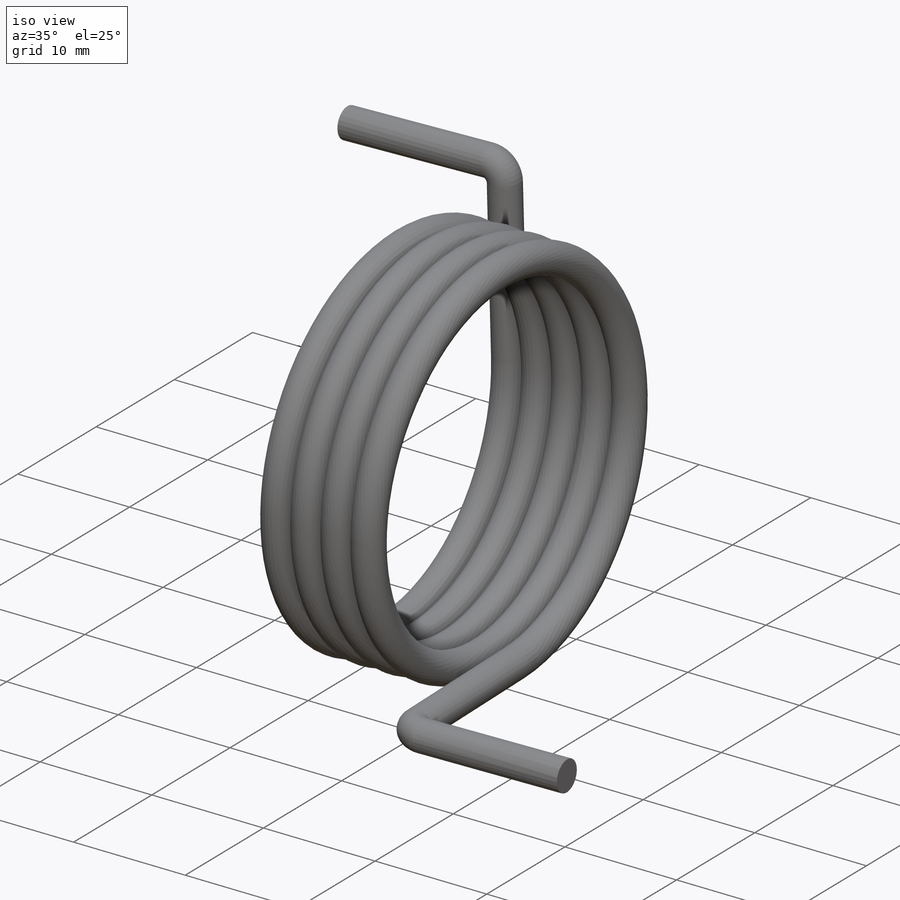
[diagram: iso view]
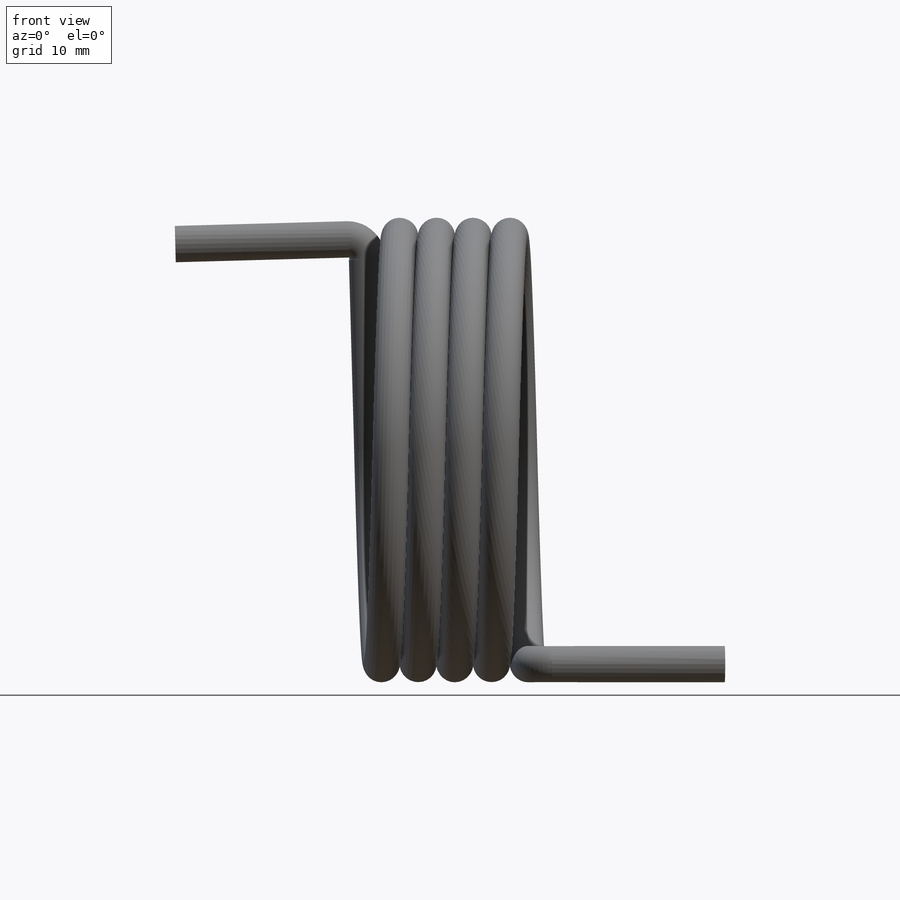
[diagram: front view]
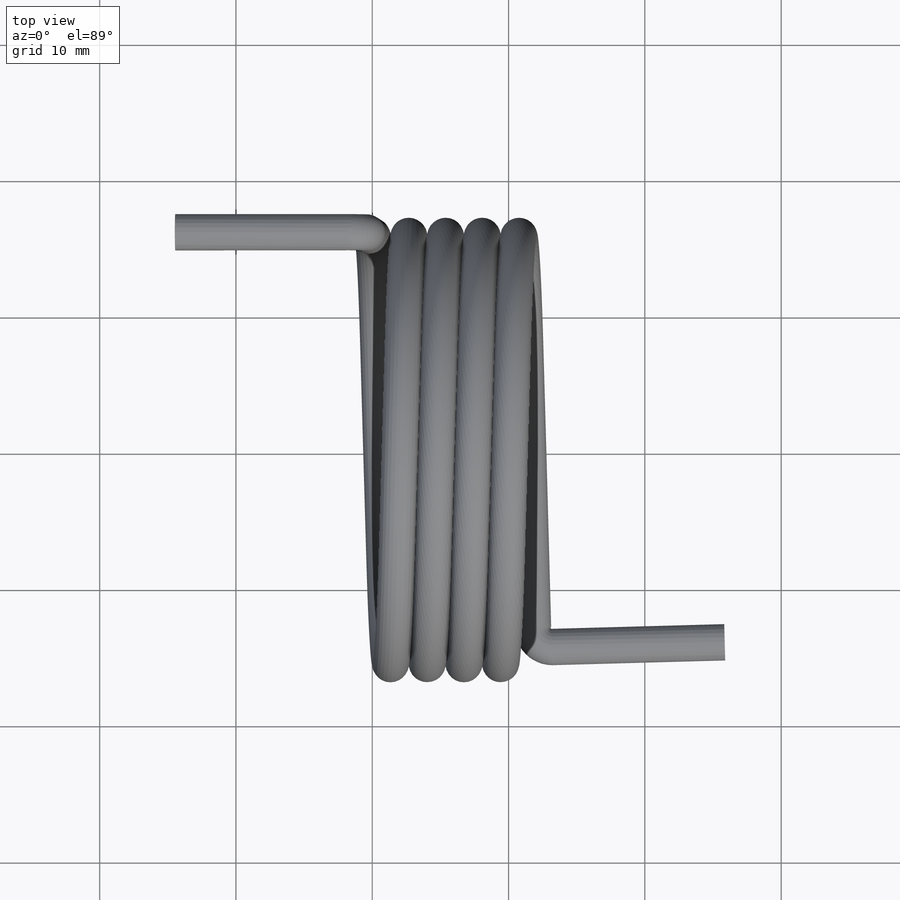
[diagram: top view]
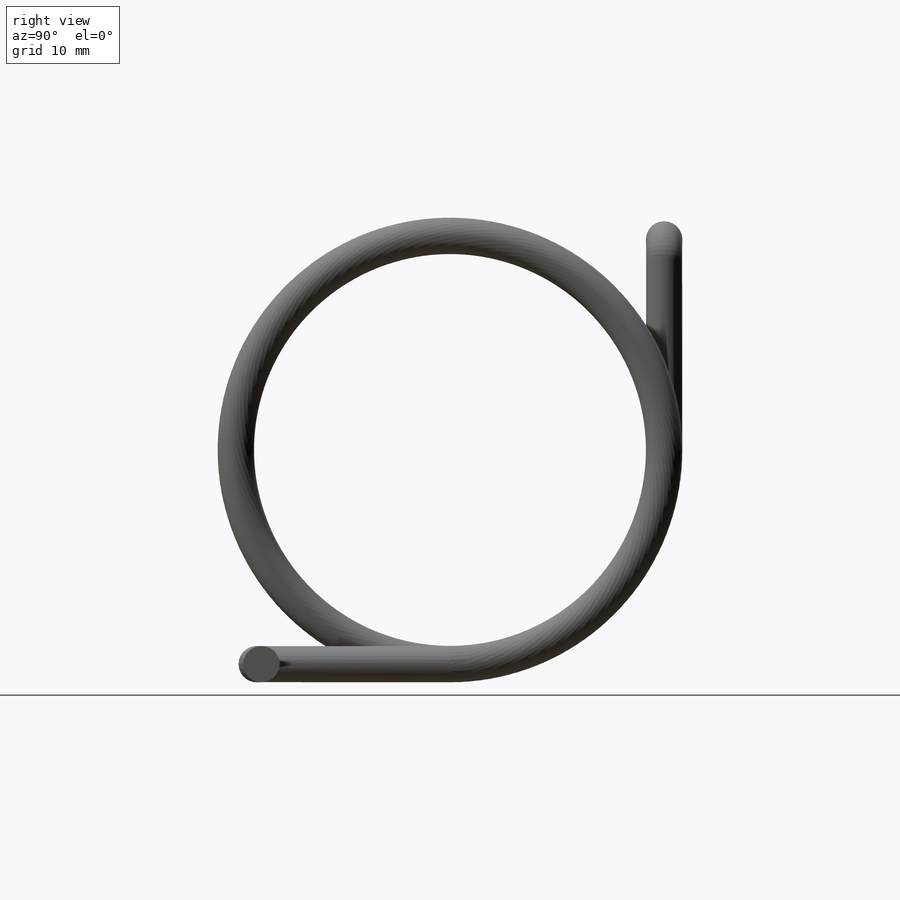
[diagram: right view]
SOLIDWORKS PART (.sldprt)
format: sldprt  version: not decoded by parser v0  size: 616,448 bytes
history: native  units: mm
features: sketch x14, plane x5, extrude x4, sweep x3, material x1, helix x1 + 1 further entry (+12 scaffold rows collapsed)
feature tree (41):
  scaffold x12  (default folders/planes/origin — collapsed)
  material  "AISI 316 Annealed Stainless Steel Bar (SS)"
  "Annotations"  RD1=12.7mm
  sketch  "Sketch1"  dims[Wire Dia=2.667mm Spring OD=34.0868mm Max Rod OD=26.1874mm]
  helix  "Helix/Spiral1"  Pitch=11.4427mm Number Coils=4.25
  plane  "Plane1"
  sketch  "Sketch2"  dims[D1=2.667mm]
  sweep  "Sweep1"
  sketch  "Sketch3"  dims[D1=0.0mm]
  sketch  "Sketch4"  dims[D1=0.0mm]
  sketch  "Sketch5"
  plane  "Plane2"
  plane  "Plane3"  Offset=2.54mm
  sketch  "Sketch6"
  extrude  "Boss-Extrude1"  Depth=12.7mm
  sketch  "Sketch7"  dims[D1=0.0mm]
  extrude  "Boss-Extrude2"  Depth=13.97mm
  plane  "Plane4"
  sketch  "Sketch8"  dims[D1=2.667mm D2=1.524mm]
  sketch  "Sketch9"  dims[D1=0.0mm]
  sketch  "3DSketch1"  dims[D1=~109.305705deg]
  sweep  "Sweep2"
  extrude  "Boss-Extrude3"  Depth=12.7mm
  plane  "Plane5"
  sketch  "Sketch10"  dims[D1=2.667mm D2=1.524mm]
  sketch  "Sketch11"  dims[D1=0.0mm]
  sketch  "3DSketch2"  dims[D1=~93.349147deg]
  sweep  "Sweep3"
  sketch  "Sketch12"  dims[D1=0.0mm]
  extrude  "Boss-Extrude4"  Depth=12.7mm
decode coverage: 17 of 22 modeling features carry decoded parameters; 1 rows unclassified (native names shown)
note: ~ marks probable driven/reference dimensions
note: suppression state not decoded; provenance and decode notes live in map.json
